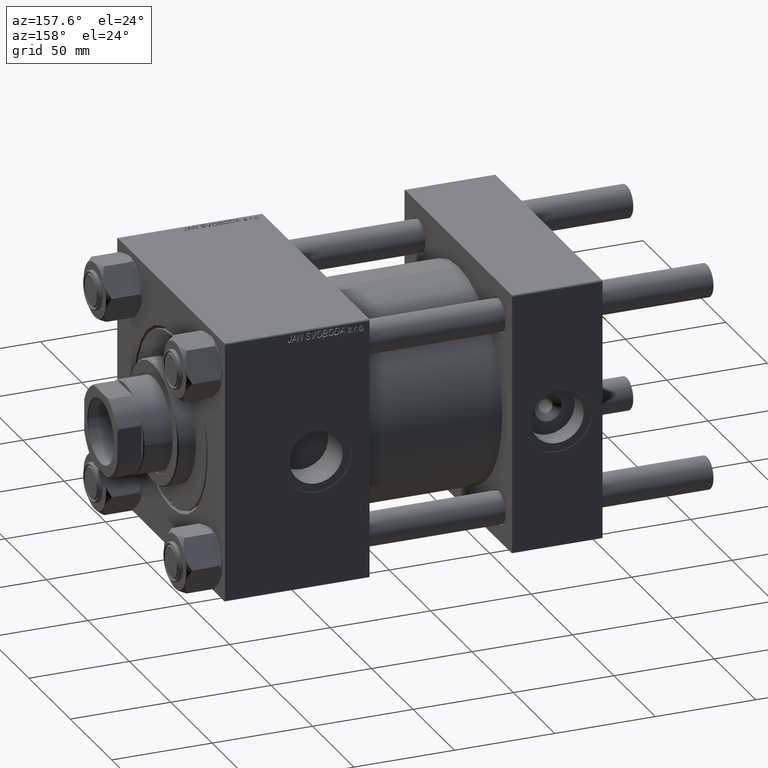
[diagram: clean part render]
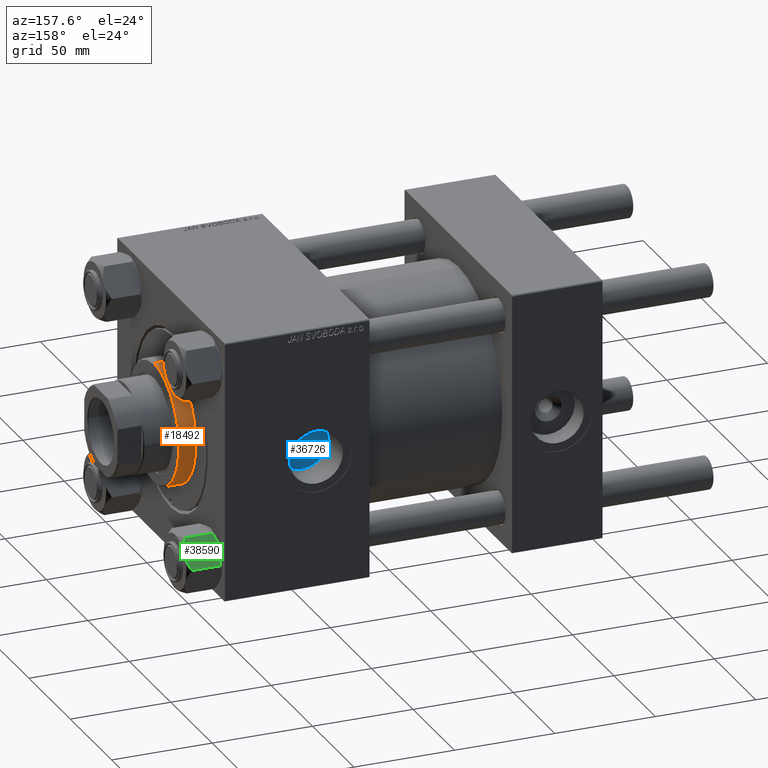
[diagram: same view with three faces highlighted in distinct colors, each labeled with its STEP entity id]
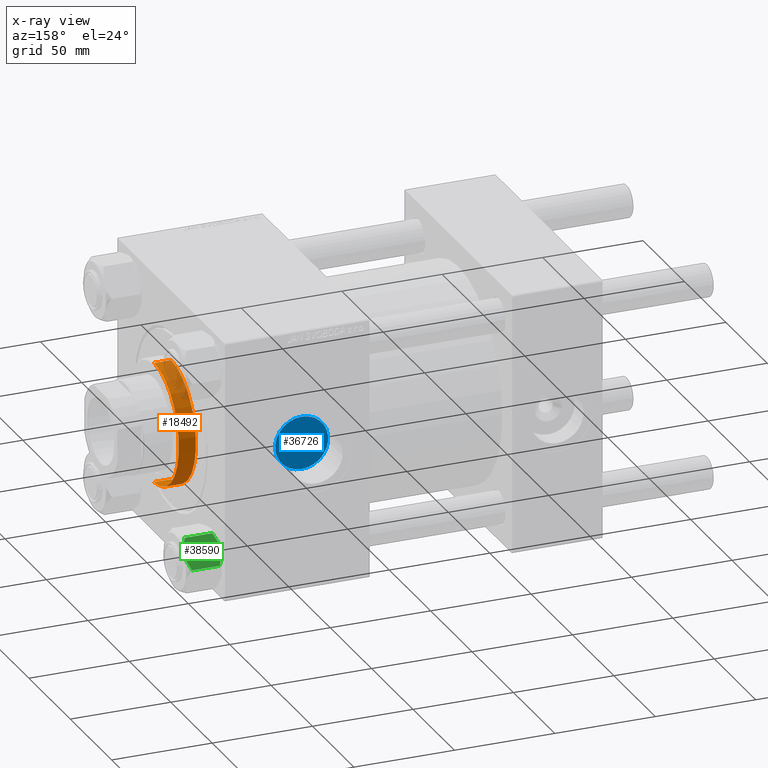
[diagram: x-ray of the same camera — body ghosted, the three highlighted faces saturated]
A machine part, auxiliary view with three faces highlighted in distinct colors.
The next image is the same camera in x-ray (body ghosted, the three faces saturated) — at least one of them is partly hidden behind the body in this view.
Their STEP definitions:

[orange] entity #18492 — the highlighted cylindrical surface (partial cylindrical patch) has radius 30 mm, axis along (-1, -0, 0).
#114 = CARTESIAN_POINT ( 'NONE',  ( 30.00000000000000000, 3.673940397442059178E-15, 37.19999999999998863 ) ) ;
#441 = DIRECTION ( 'NONE',  ( -0.000000000000000000, -0.000000000000000000, -1.000000000000000000 ) ) ;
#503 = FACE_OUTER_BOUND ( 'NONE', #36180, .T. ) ;
#530 = VECTOR ( 'NONE', #24898, 1000.000000000000000 ) ;
#1036 = ORIENTED_EDGE ( 'NONE', *, *, #39926, .T. ) ;
#2055 = EDGE_CURVE ( 'NONE', #23939, #17056, #6041, .T. ) ;
#4066 = EDGE_CURVE ( 'NONE', #44996, #17056, #36611, .T. ) ;
#5256 = EDGE_CURVE ( 'NONE', #23939, #11745, #6524, .T. ) ;
#6041 = LINE ( 'NONE', #28717, #530 ) ;
#6524 = CIRCLE ( 'NONE', #12224, 30.00000000000000000 ) ;
#8831 = CARTESIAN_POINT ( 'NONE',  ( -30.00000000000000000, 0.000000000000000000, 28.69999999999999929 ) ) ;
#9333 = ORIENTED_EDGE ( 'NONE', *, *, #5256, .T. ) ;
#11745 = VERTEX_POINT ( 'NONE', #114 ) ;
#12224 = AXIS2_PLACEMENT_3D ( 'NONE', #27649, #43951, #47260 ) ;
#13084 = DIRECTION ( 'NONE',  ( 0.000000000000000000, 0.000000000000000000, 1.000000000000000000 ) ) ;
#13838 = CARTESIAN_POINT ( 'NONE',  ( 0.000000000000000000, 0.000000000000000000, 28.69999999999999929 ) ) ;
#14907 = CARTESIAN_POINT ( 'NONE',  ( -30.00000000000000000, 0.000000000000000000, 37.19999999999998863 ) ) ;
#15516 = DIRECTION ( 'NONE',  ( -1.000000000000000000, 0.000000000000000000, 0.000000000000000000 ) ) ;
#17056 = VERTEX_POINT ( 'NONE', #8831 ) ;
#18492 = ADVANCED_FACE ( 'NONE', ( #503 ), #23419, .T. ) ;
#23419 = CYLINDRICAL_SURFACE ( 'NONE', #36157, 30.00000000000000000 ) ;
#23939 = VERTEX_POINT ( 'NONE', #14907 ) ;
#24898 = DIRECTION ( 'NONE',  ( -0.000000000000000000, -0.000000000000000000, -1.000000000000000000 ) ) ;
#27649 = CARTESIAN_POINT ( 'NONE',  ( 0.000000000000000000, 0.000000000000000000, 37.19999999999998863 ) ) ;
#28454 = CARTESIAN_POINT ( 'NONE',  ( 30.00000000000000000, 3.673940397442059178E-15, 37.69999999999999574 ) ) ;
#28616 = DIRECTION ( 'NONE',  ( 1.000000000000000000, 0.000000000000000000, 0.000000000000000000 ) ) ;
#28717 = CARTESIAN_POINT ( 'NONE',  ( -30.00000000000000000, 0.000000000000000000, 37.69999999999999574 ) ) ;
#35328 = LINE ( 'NONE', #28454, #44386 ) ;
#36157 = AXIS2_PLACEMENT_3D ( 'NONE', #46095, #43036, #15516 ) ;
#36180 = EDGE_LOOP ( 'NONE', ( #9333, #1036, #48311, #48299 ) ) ;
#36611 = CIRCLE ( 'NONE', #49613, 30.00000000000000000 ) ;
#39926 = EDGE_CURVE ( 'NONE', #11745, #44996, #35328, .T. ) ;
#43036 = DIRECTION ( 'NONE',  ( -0.000000000000000000, -0.000000000000000000, -1.000000000000000000 ) ) ;
#43951 = DIRECTION ( 'NONE',  ( 0.000000000000000000, 0.000000000000000000, -1.000000000000000000 ) ) ;
#44386 = VECTOR ( 'NONE', #441, 1000.000000000000000 ) ;
#44996 = VERTEX_POINT ( 'NONE', #47148 ) ;
#46095 = CARTESIAN_POINT ( 'NONE',  ( 0.000000000000000000, 0.000000000000000000, 37.69999999999999574 ) ) ;
#47148 = CARTESIAN_POINT ( 'NONE',  ( 30.00000000000000000, 3.673940397442059178E-15, 28.69999999999999929 ) ) ;
#47260 = DIRECTION ( 'NONE',  ( 1.000000000000000000, 0.000000000000000000, 0.000000000000000000 ) ) ;
#48299 = ORIENTED_EDGE ( 'NONE', *, *, #2055, .F. ) ;
#48311 = ORIENTED_EDGE ( 'NONE', *, *, #4066, .T. ) ;
#49613 = AXIS2_PLACEMENT_3D ( 'NONE', #13838, #13084, #28616 ) ;

[blue] entity #36726 — the highlighted planar face has unit normal (0, 1, 0).
#2653 = DIRECTION ( 'NONE',  ( 0.000000000000000000, 1.000000000000000000, 0.000000000000000000 ) ) ;
#11428 = CARTESIAN_POINT ( 'NONE',  ( 142.4399999999999693, 47.20000000000003126, 0.000000000000000000 ) ) ;
#11813 = AXIS2_PLACEMENT_3D ( 'NONE', #11428, #49662, #26966 ) ;
#14481 = CARTESIAN_POINT ( 'NONE',  ( 142.4399999999999693, 47.20000000000003126, 13.22000000000001307 ) ) ;
#16483 = VERTEX_POINT ( 'NONE', #29626 ) ;
#17188 = DIRECTION ( 'NONE',  ( 0.000000000000000000, 0.000000000000000000, 1.000000000000000000 ) ) ;
#17758 = VERTEX_POINT ( 'NONE', #14481 ) ;
#18930 = DIRECTION ( 'NONE',  ( 0.000000000000000000, 0.000000000000000000, 1.000000000000000000 ) ) ;
#21516 = CIRCLE ( 'NONE', #28008, 13.22000000000001307 ) ;
#21946 = AXIS2_PLACEMENT_3D ( 'NONE', #41108, #40616, #17188 ) ;
#22656 = PLANE ( 'NONE',  #11813 ) ;
#26966 = DIRECTION ( 'NONE',  ( 0.000000000000000000, -0.000000000000000000, 1.000000000000000000 ) ) ;
#28008 = AXIS2_PLACEMENT_3D ( 'NONE', #49265, #2653, #18930 ) ;
#29247 = CIRCLE ( 'NONE', #21946, 13.22000000000001307 ) ;
#29626 = CARTESIAN_POINT ( 'NONE',  ( 142.4399999999999693, 47.20000000000003126, -13.22000000000001307 ) ) ;
#31439 = EDGE_LOOP ( 'NONE', ( #42162, #44743 ) ) ;
#33488 = EDGE_CURVE ( 'NONE', #16483, #17758, #21516, .T. ) ;
#36726 = ADVANCED_FACE ( 'NONE', ( #38437 ), #22656, .T. ) ;
#38437 = FACE_OUTER_BOUND ( 'NONE', #31439, .T. ) ;
#40616 = DIRECTION ( 'NONE',  ( 0.000000000000000000, 1.000000000000000000, 0.000000000000000000 ) ) ;
#41108 = CARTESIAN_POINT ( 'NONE',  ( 142.4399999999999693, 47.20000000000003126, 0.000000000000000000 ) ) ;
#42162 = ORIENTED_EDGE ( 'NONE', *, *, #49511, .T. ) ;
#44743 = ORIENTED_EDGE ( 'NONE', *, *, #33488, .T. ) ;
#49265 = CARTESIAN_POINT ( 'NONE',  ( 142.4399999999999693, 47.20000000000003126, 0.000000000000000000 ) ) ;
#49511 = EDGE_CURVE ( 'NONE', #17758, #16483, #29247, .T. ) ;
#49662 = DIRECTION ( 'NONE',  ( 0.000000000000000000, 1.000000000000000000, 0.000000000000000000 ) ) ;

[green] entity #38590 — the highlighted planar face has unit normal (-0, -0.8135, -0.5816).
#1092 = CARTESIAN_POINT ( 'NONE',  ( -11.71500000000000341, 6.763658403556464194, 0.000000000000000000 ) ) ;
#1111 = VECTOR ( 'NONE', #36282, 1000.000000000000000 ) ;
#1159 = DIRECTION ( 'NONE',  ( -0.000000000000000000, -0.000000000000000000, 1.000000000000000000 ) ) ;
#1240 = EDGE_CURVE ( 'NONE', #39746, #2351, #44468, .T. ) ;
#1716 = CARTESIAN_POINT ( 'NONE',  ( -15.62000000000000277, -9.678749765951853952E-16, -16.00000000000000000 ) ) ;
#2269 = CARTESIAN_POINT ( 'NONE',  ( -7.903528262322684128, 13.36532110482642111, -2.000000000000000000 ) ) ;
#2351 = VERTEX_POINT ( 'NONE', #1092 ) ;
#3236 = VERTEX_POINT ( 'NONE', #48278 ) ;
#4723 = CARTESIAN_POINT ( 'NONE',  ( -9.114548888011791306, 11.26777185211903110, -0.9142282604026947812 ) ) ;
#5177 = CARTESIAN_POINT ( 'NONE',  ( -14.30591678195076000, 2.276058899034898886, -0.9473872146228137225 ) ) ;
#5502 = CARTESIAN_POINT ( 'NONE',  ( -14.31545111198821374, 2.259544954993896848, -17.08577173959729834 ) ) ;
#5993 = CARTESIAN_POINT ( 'NONE',  ( -11.71500000000000341, 6.763658403556464194, -18.00000000000000000 ) ) ;
#8541 = CARTESIAN_POINT ( 'NONE',  ( -10.38662926516872531, 9.064464007571846338, -0.2430846701012981670 ) ) ;
#8999 = CARTESIAN_POINT ( 'NONE',  ( -13.99051971937273642, 2.822342635978010161, -0.7317196846281152078 ) ) ;
#9557 = CARTESIAN_POINT ( 'NONE',  ( -15.62000000000000277, -9.678749765951853952E-16, -18.00000000000000000 ) ) ;
#10016 = EDGE_CURVE ( 'NONE', #30307, #28763, #49877, .T. ) ;
#10183 = LINE ( 'NONE', #40336, #36349 ) ;
#10867 = EDGE_LOOP ( 'NONE', ( #11443, #38041, #15506, #45351, #43516, #48512, #15354, #44731, #36412, #49421 ) ) ;
#11443 = ORIENTED_EDGE ( 'NONE', *, *, #42970, .F. ) ;
#11887 = AXIS2_PLACEMENT_3D ( 'NONE', #31630, #27811, #32903 ) ;
#12068 = VERTEX_POINT ( 'NONE', #15570 ) ;
#12828 = CARTESIAN_POINT ( 'NONE',  ( -12.37702203890362895, 5.617002596445053619, -7.928228386300251174E-16 ) ) ;
#12884 = CARTESIAN_POINT ( 'NONE',  ( -10.06459418565412811, 9.622245127110607754, -0.3836066851120605858 ) ) ;
#13078 = CARTESIAN_POINT ( 'NONE',  ( -15.52647173767732269, 0.1619957022865083085, -2.000000000000000000 ) ) ;
#13129 = CARTESIAN_POINT ( 'NONE',  ( -8.502393313253762130, 12.32805640973647954, -1.411989271640067711 ) ) ;
#13216 = EDGE_CURVE ( 'NONE', #3236, #39746, #17431, .T. ) ;
#13337 = LINE ( 'NONE', #23594, #41239 ) ;
#15354 = ORIENTED_EDGE ( 'NONE', *, *, #29766, .F. ) ;
#15506 = ORIENTED_EDGE ( 'NONE', *, *, #16636, .F. ) ;
#15570 = CARTESIAN_POINT ( 'NONE',  ( -7.810000000000002274, 13.52731680711293549, -16.00000000000000000 ) ) ;
#15947 = CARTESIAN_POINT ( 'NONE',  ( -8.506059550806625680, 12.32170630002229395, -16.56553707812499354 ) ) ;
#16099 = PLANE ( 'NONE',  #11887 ) ;
#16636 = EDGE_CURVE ( 'NONE', #49844, #38589, #46092, .T. ) ;
#17031 = CARTESIAN_POINT ( 'NONE',  ( -15.52647173767732269, 0.1619957022865083085, -16.00000000000000000 ) ) ;
#17216 = CARTESIAN_POINT ( 'NONE',  ( -12.04818928091285635, 6.186557640478059561, -17.99999999999999289 ) ) ;
#17431 = LINE ( 'NONE', #47996, #1111 ) ;
#17464 = CARTESIAN_POINT ( 'NONE',  ( -13.36540581434587338, 3.905071680002323742, -17.61639331488793303 ) ) ;
#17966 = CARTESIAN_POINT ( 'NONE',  ( -15.52647173767732269, 0.1619957022865083085, -16.00000000000000000 ) ) ;
#19086 = CARTESIAN_POINT ( 'NONE',  ( -15.62000000000000277, -9.678749765951853952E-16, -1.999999999999998224 ) ) ;
#20726 = CARTESIAN_POINT ( 'NONE',  ( -14.92394044919337759, 1.205610507090636219, -1.434462921875002683 ) ) ;
#21422 = B_SPLINE_CURVE_WITH_KNOTS ( 'NONE', 3,
 ( #47716, #12828, #28357, #8999, #5177, #20726, #36256, #13078 ),
 .UNSPECIFIED., .F., .F.,
 ( 4, 2, 2, 4 ),
 ( 0.007890825462474420487, 0.01181022244528553283, 0.01376992093669108727, 0.01572961942809664171 ),
 .UNSPECIFIED. ) ;
#23594 = CARTESIAN_POINT ( 'NONE',  ( -15.62000000000000277, -9.678749765951853952E-16, -16.00000000000000000 ) ) ;
#24105 = CARTESIAN_POINT ( 'NONE',  ( -11.05297796109638675, 7.910314210667877433, -18.00000000000000000 ) ) ;
#24673 = CARTESIAN_POINT ( 'NONE',  ( -11.71500000000000341, 6.763658403556464194, -18.00000000000000000 ) ) ;
#24748 = CARTESIAN_POINT ( 'NONE',  ( -15.62000000000000277, -9.678749765951853952E-16, -1.999999999999998224 ) ) ;
#26266 = EDGE_CURVE ( 'NONE', #2351, #49844, #21422, .T. ) ;
#26368 = VECTOR ( 'NONE', #40878, 1000.000000000000000 ) ;
#27811 = DIRECTION ( 'NONE',  ( 0.8660254037844387076, -0.4999999999999998335, 0.000000000000000000 ) ) ;
#28357 = CARTESIAN_POINT ( 'NONE',  ( -13.02784502466562877, 4.489744118371585380, -0.1971866459924576653 ) ) ;
#28658 = CARTESIAN_POINT ( 'NONE',  ( -11.71500000000000341, 6.763658403556464194, 0.000000000000000000 ) ) ;
#28763 = VERTEX_POINT ( 'NONE', #24673 ) ;
#28952 = EDGE_CURVE ( 'NONE', #28763, #43153, #44319, .T. ) ;
#29015 = EDGE_CURVE ( 'NONE', #43153, #12068, #13337, .T. ) ;
#29122 = CARTESIAN_POINT ( 'NONE',  ( -10.40215497533437627, 9.037572688741338567, -17.80281335400754372 ) ) ;
#29766 = EDGE_CURVE ( 'NONE', #12068, #3236, #39369, .T. ) ;
#29888 = VECTOR ( 'NONE', #1159, 1000.000000000000000 ) ;
#29986 = CARTESIAN_POINT ( 'NONE',  ( -7.903528262322684128, 13.36532110482642111, -16.00000000000000000 ) ) ;
#30307 = VERTEX_POINT ( 'NONE', #17031 ) ;
#31028 = CARTESIAN_POINT ( 'NONE',  ( -7.903528262322684128, 13.36532110482642111, -2.000000000000000000 ) ) ;
#31630 = CARTESIAN_POINT ( 'NONE',  ( -15.62000000000000277, -9.678749765951853952E-16, -18.00000000000000000 ) ) ;
#31742 = CARTESIAN_POINT ( 'NONE',  ( -11.71500000000000341, 6.763658403556464194, -18.00000000000000000 ) ) ;
#32233 = CARTESIAN_POINT ( 'NONE',  ( -7.810000000000002274, 13.52731680711293549, -18.00000000000000000 ) ) ;
#32398 = FACE_OUTER_BOUND ( 'NONE', #10867, .T. ) ;
#32903 = DIRECTION ( 'NONE',  ( 0.4999999999999998335, 0.8660254037844387076, 0.000000000000000000 ) ) ;
#33203 = CARTESIAN_POINT ( 'NONE',  ( -9.124083218049246824, 11.25125790807802950, -17.05261278537718539 ) ) ;
#33401 = EDGE_CURVE ( 'NONE', #40000, #38589, #37054, .T. ) ;
#35125 = DIRECTION ( 'NONE',  ( -0.4999999999999998335, -0.8660254037844387076, 0.000000000000000000 ) ) ;
#35234 = VECTOR ( 'NONE', #35125, 1000.000000000000000 ) ;
#36256 = CARTESIAN_POINT ( 'NONE',  ( -15.22736220980735489, 0.6800686015852296373, -1.706311779141443496 ) ) ;
#36282 = DIRECTION ( 'NONE',  ( -0.4999999999999998335, -0.8660254037844387076, 0.000000000000000000 ) ) ;
#36349 = VECTOR ( 'NONE', #37445, 1000.000000000000000 ) ;
#36412 = ORIENTED_EDGE ( 'NONE', *, *, #28952, .F. ) ;
#37054 = LINE ( 'NONE', #9557, #26368 ) ;
#37445 = DIRECTION ( 'NONE',  ( 0.4999999999999998335, 0.8660254037844387076, 0.000000000000000000 ) ) ;
#37568 = CARTESIAN_POINT ( 'NONE',  ( -12.38621571200405569, 5.601078687526927169, -17.94910618364698252 ) ) ;
#38041 = ORIENTED_EDGE ( 'NONE', *, *, #33401, .T. ) ;
#38589 = VERTEX_POINT ( 'NONE', #24748 ) ;
#38590 = ADVANCED_FACE ( 'NONE', ( #32398 ), #16099, .F. ) ;
#39134 = DIRECTION ( 'NONE',  ( 0.4999999999999998335, 0.8660254037844387076, 0.000000000000000000 ) ) ;
#39369 = LINE ( 'NONE', #32233, #29888 ) ;
#39746 = VERTEX_POINT ( 'NONE', #2269 ) ;
#40000 = VERTEX_POINT ( 'NONE', #1716 ) ;
#40336 = CARTESIAN_POINT ( 'NONE',  ( -15.62000000000000277, -9.678749765951853952E-16, -16.00000000000000000 ) ) ;
#40878 = DIRECTION ( 'NONE',  ( -0.000000000000000000, -0.000000000000000000, 1.000000000000000000 ) ) ;
#40891 = CARTESIAN_POINT ( 'NONE',  ( -13.04337073483127973, 4.462852799541082938, -17.75691532989869614 ) ) ;
#41239 = VECTOR ( 'NONE', #39134, 1000.000000000000000 ) ;
#42970 = EDGE_CURVE ( 'NONE', #40000, #30307, #10183, .T. ) ;
#43153 = VERTEX_POINT ( 'NONE', #29986 ) ;
#43516 = ORIENTED_EDGE ( 'NONE', *, *, #1240, .F. ) ;
#43695 = CARTESIAN_POINT ( 'NONE',  ( -11.04378428799595291, 7.926238119586001218, -0.05089381635301579859 ) ) ;
#44319 = B_SPLINE_CURVE_WITH_KNOTS ( 'NONE', 3,
 ( #31742, #24105, #29122, #44410, #33203, #15947, #48481, #47276 ),
 .UNSPECIFIED., .F., .F.,
 ( 4, 2, 2, 4 ),
 ( 0.007890825462474422222, 0.01181022244528553283, 0.01376992093669108727, 0.01572961942809664518 ),
 .UNSPECIFIED. ) ;
#44410 = CARTESIAN_POINT ( 'NONE',  ( -9.439480280627265074, 10.70497417113491601, -17.26828031537188579 ) ) ;
#44468 = B_SPLINE_CURVE_WITH_KNOTS ( 'NONE', 3,
 ( #31028, #13129, #4723, #12884, #8541, #43695, #50390, #28658 ),
 .UNSPECIFIED., .F., .F.,
 ( 4, 2, 2, 4 ),
 ( 4.472842641915697111E-07, 0.003945636373369306588, 0.005918230917921864405, 0.007890825462474420487 ),
 .UNSPECIFIED. ) ;
#44630 = CARTESIAN_POINT ( 'NONE',  ( -15.52647173767732269, 0.1619957022865083085, -2.000000000000000000 ) ) ;
#44731 = ORIENTED_EDGE ( 'NONE', *, *, #29015, .F. ) ;
#45210 = CARTESIAN_POINT ( 'NONE',  ( -14.92760668674625180, 1.199260397376455067, -16.58801072835993295 ) ) ;
#45351 = ORIENTED_EDGE ( 'NONE', *, *, #26266, .F. ) ;
#46092 = LINE ( 'NONE', #19086, #35234 ) ;
#47276 = CARTESIAN_POINT ( 'NONE',  ( -7.903528262322684128, 13.36532110482642111, -16.00000000000000000 ) ) ;
#47716 = CARTESIAN_POINT ( 'NONE',  ( -11.71500000000000341, 6.763658403556464194, 0.000000000000000000 ) ) ;
#47996 = CARTESIAN_POINT ( 'NONE',  ( -15.62000000000000277, -9.678749765951853952E-16, -1.999999999999998224 ) ) ;
#48278 = CARTESIAN_POINT ( 'NONE',  ( -7.810000000000002274, 13.52731680711293549, -1.999999999999998224 ) ) ;
#48481 = CARTESIAN_POINT ( 'NONE',  ( -8.202637790192651934, 12.84724820552770197, -16.29368822085855584 ) ) ;
#48512 = ORIENTED_EDGE ( 'NONE', *, *, #13216, .F. ) ;
#49421 = ORIENTED_EDGE ( 'NONE', *, *, #10016, .F. ) ;
#49844 = VERTEX_POINT ( 'NONE', #44630 ) ;
#49877 = B_SPLINE_CURVE_WITH_KNOTS ( 'NONE', 3,
 ( #17966, #45210, #5502, #17464, #40891, #37568, #17216, #5993 ),
 .UNSPECIFIED., .F., .F.,
 ( 4, 2, 2, 4 ),
 ( 4.472842641949058562E-07, 0.003945636373369310924, 0.005918230917921867007, 0.007890825462474422222 ),
 .UNSPECIFIED. ) ;
#50390 = CARTESIAN_POINT ( 'NONE',  ( -11.38181071908714870, 7.340759166634867938, -9.266540442962045709E-16 ) ) ;